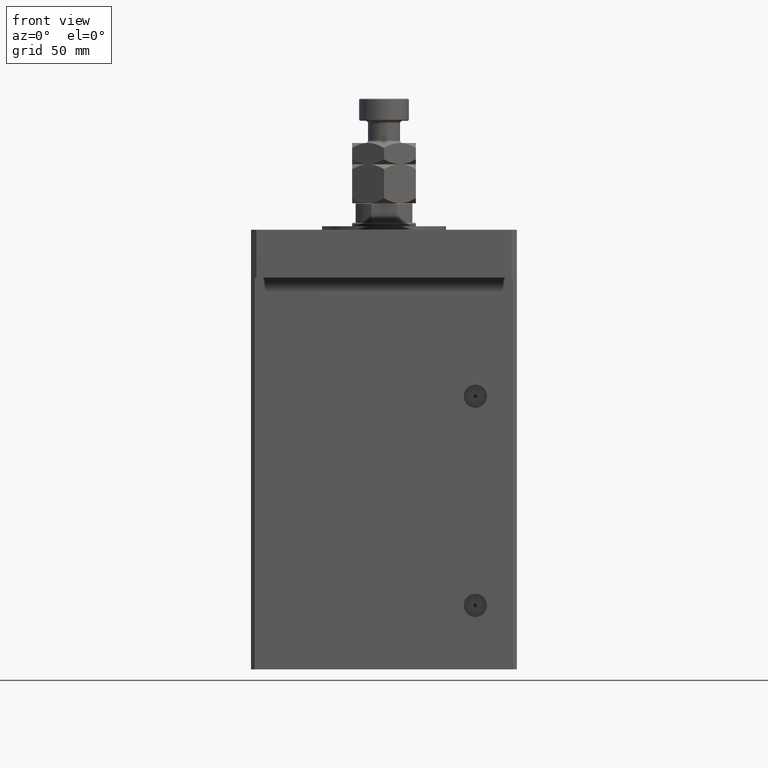
[diagram: clean part render]
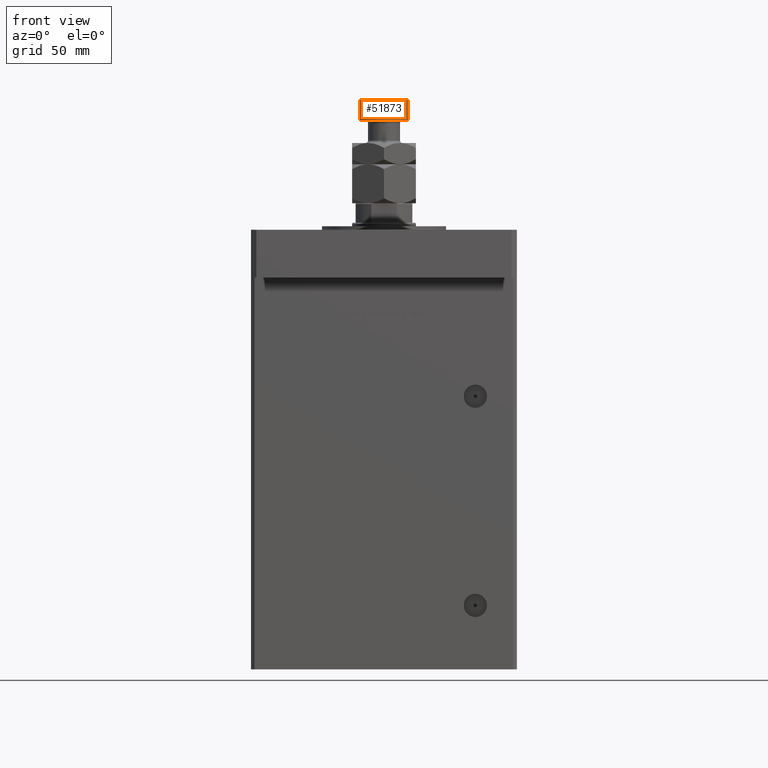
[diagram: same view with one face highlighted and labeled with its STEP entity id]
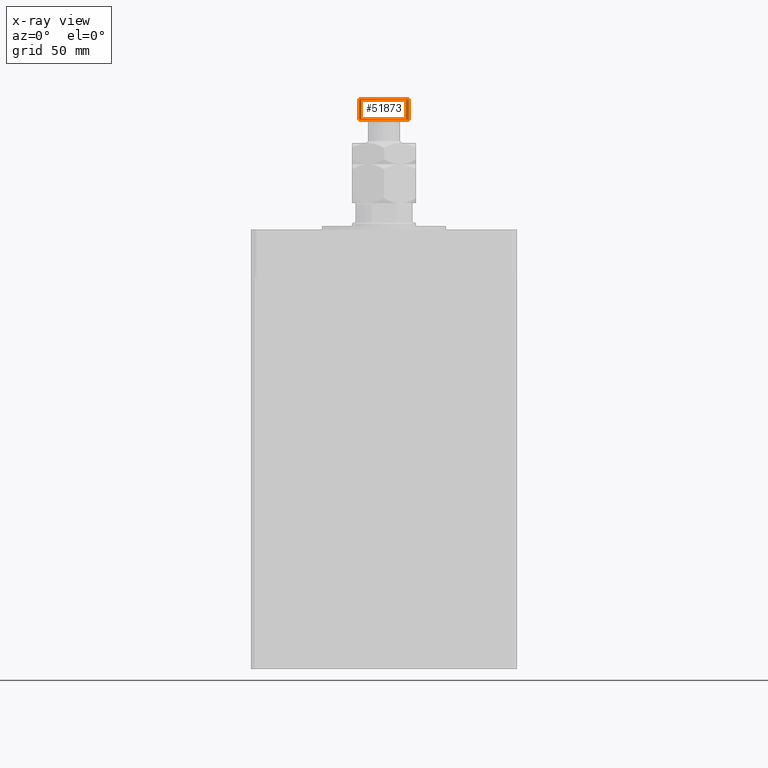
[diagram: x-ray of the same camera — body ghosted, the highlighted face saturated]
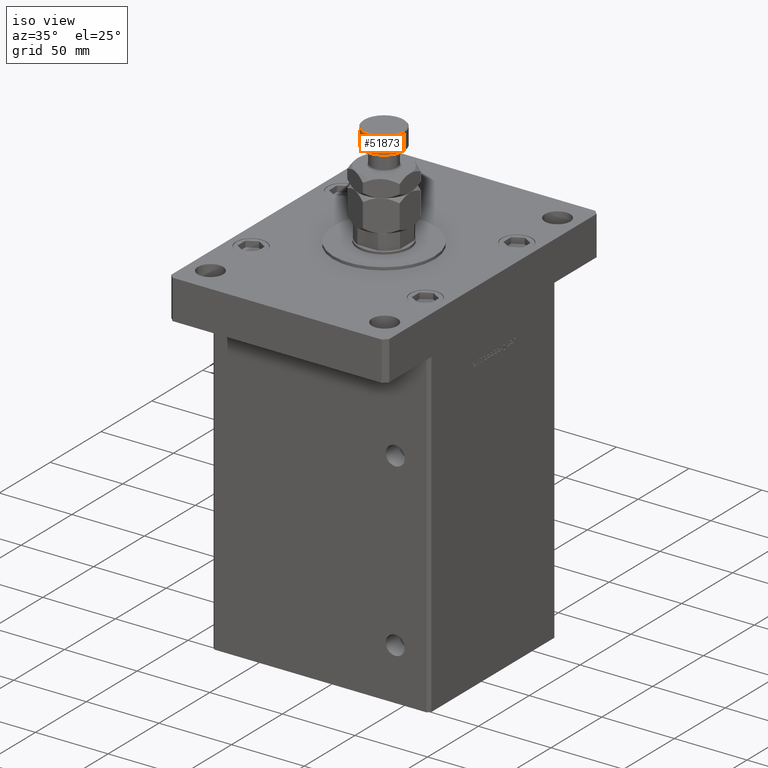
[diagram: same view with one face highlighted and labeled with its STEP entity id]
A machine part, front view. The second image highlights one B-rep face of the part: STEP entity #51873.
The next image is the same camera in x-ray: the body ghosted, the highlighted face saturated — about 0% of this face is hidden behind the body in this view.
A second angle (iso view) of the same face is appended — the face is thin or edge-on in the first view.
In plain terms, the highlighted cylindrical surface (edge-blend (fillet) strip) has radius 14 mm, axis along (-0, -0, -1).
Its self-contained STEP definition (entity closure, byte-faithful):
#1397 = ORIENTED_EDGE ( 'NONE', *, *, #35720, .F. ) ;
#1759 = ORIENTED_EDGE ( 'NONE', *, *, #9584, .T. ) ;
#2094 = LINE ( 'NONE', #36216, #45116 ) ;
#2233 = AXIS2_PLACEMENT_3D ( 'NONE', #37898, #12720, #25871 ) ;
#2386 = DIRECTION ( 'NONE',  ( -0.000000000000000000, -0.000000000000000000, -1.000000000000000000 ) ) ;
#3018 = VERTEX_POINT ( 'NONE', #13413 ) ;
#4025 = CARTESIAN_POINT ( 'NONE',  ( 14.00000000000000000, 1.714505518806294638E-15, 46.99999999999998579 ) ) ;
#4605 = FACE_OUTER_BOUND ( 'NONE', #12117, .T. ) ;
#5798 = DIRECTION ( 'NONE',  ( 1.000000000000000000, 0.000000000000000000, 0.000000000000000000 ) ) ;
#6081 = DIRECTION ( 'NONE',  ( 0.000000000000000000, 0.000000000000000000, -1.000000000000000000 ) ) ;
#9108 = CARTESIAN_POINT ( 'NONE',  ( 0.000000000000000000, 0.000000000000000000, 46.99999999999998579 ) ) ;
#9584 = EDGE_CURVE ( 'NONE', #42846, #3018, #2094, .T. ) ;
#12117 = EDGE_LOOP ( 'NONE', ( #1397, #29643, #1759, #33048 ) ) ;
#12163 = CIRCLE ( 'NONE', #40779, 14.00000000000000000 ) ;
#12456 = CYLINDRICAL_SURFACE ( 'NONE', #2233, 14.00000000000000000 ) ;
#12522 = EDGE_CURVE ( 'NONE', #19567, #42846, #12163, .T. ) ;
#12720 = DIRECTION ( 'NONE',  ( -0.000000000000000000, -0.000000000000000000, -1.000000000000000000 ) ) ;
#13413 = CARTESIAN_POINT ( 'NONE',  ( -14.00000000000000000, 0.000000000000000000, 46.99999999999998579 ) ) ;
#15027 = CARTESIAN_POINT ( 'NONE',  ( 14.00000000000000000, 1.714505518806294638E-15, 58.50000000000002132 ) ) ;
#15582 = AXIS2_PLACEMENT_3D ( 'NONE', #9108, #31470, #27829 ) ;
#19567 = VERTEX_POINT ( 'NONE', #15027 ) ;
#23636 = CARTESIAN_POINT ( 'NONE',  ( 14.00000000000000000, 1.714505518806294638E-15, 59.00000000000000000 ) ) ;
#25871 = DIRECTION ( 'NONE',  ( -1.000000000000000000, 0.000000000000000000, 0.000000000000000000 ) ) ;
#27829 = DIRECTION ( 'NONE',  ( 1.000000000000000000, 0.000000000000000000, 0.000000000000000000 ) ) ;
#28167 = CARTESIAN_POINT ( 'NONE',  ( 0.000000000000000000, 0.000000000000000000, 58.50000000000002132 ) ) ;
#28403 = LINE ( 'NONE', #23636, #42702 ) ;
#29643 = ORIENTED_EDGE ( 'NONE', *, *, #12522, .T. ) ;
#31470 = DIRECTION ( 'NONE',  ( -0.000000000000000000, -0.000000000000000000, 1.000000000000000000 ) ) ;
#33048 = ORIENTED_EDGE ( 'NONE', *, *, #49932, .T. ) ;
#35720 = EDGE_CURVE ( 'NONE', #19567, #46519, #28403, .T. ) ;
#36216 = CARTESIAN_POINT ( 'NONE',  ( -14.00000000000000000, 0.000000000000000000, 59.00000000000000000 ) ) ;
#37898 = CARTESIAN_POINT ( 'NONE',  ( 0.000000000000000000, 0.000000000000000000, 59.00000000000000000 ) ) ;
#40779 = AXIS2_PLACEMENT_3D ( 'NONE', #28167, #6081, #5798 ) ;
#42702 = VECTOR ( 'NONE', #2386, 1000.000000000000000 ) ;
#42846 = VERTEX_POINT ( 'NONE', #44897 ) ;
#44872 = DIRECTION ( 'NONE',  ( -0.000000000000000000, -0.000000000000000000, -1.000000000000000000 ) ) ;
#44897 = CARTESIAN_POINT ( 'NONE',  ( -14.00000000000000000, 0.000000000000000000, 58.50000000000002132 ) ) ;
#45116 = VECTOR ( 'NONE', #44872, 1000.000000000000000 ) ;
#46519 = VERTEX_POINT ( 'NONE', #4025 ) ;
#49932 = EDGE_CURVE ( 'NONE', #3018, #46519, #53021, .T. ) ;
#51873 = ADVANCED_FACE ( 'NONE', ( #4605 ), #12456, .T. ) ;
#53021 = CIRCLE ( 'NONE', #15582, 14.00000000000000000 ) ;